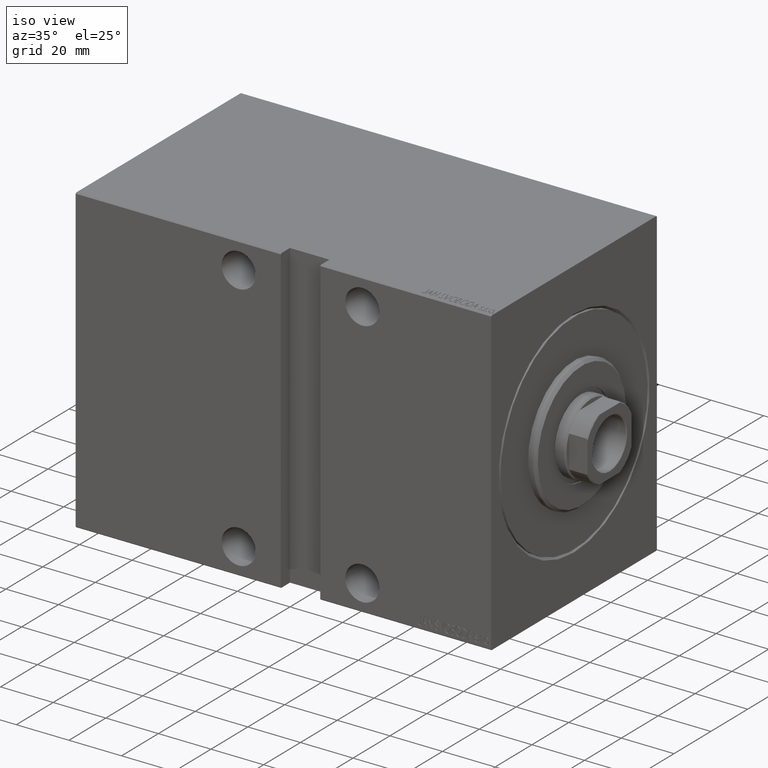
[diagram: clean part render]
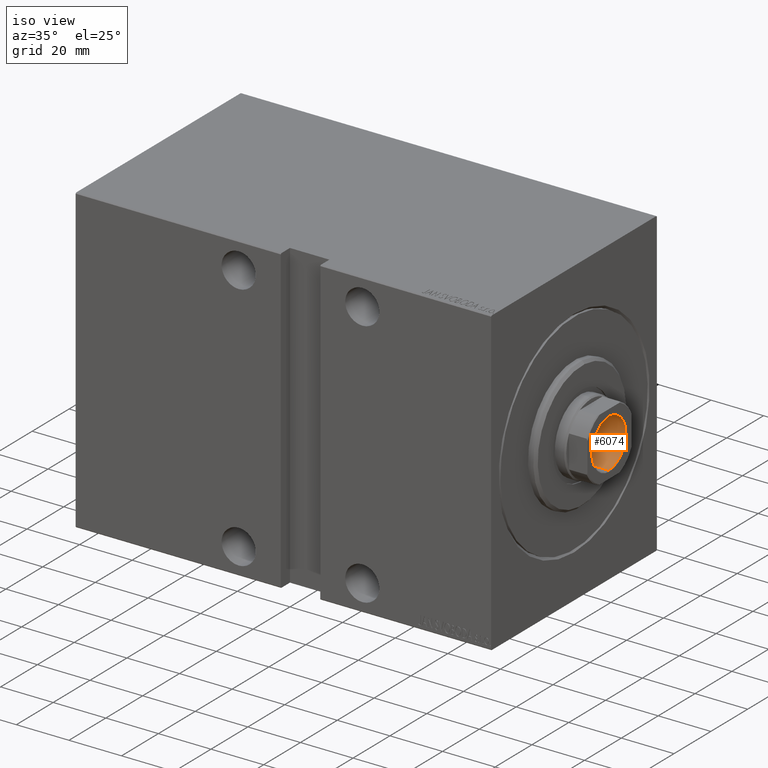
[diagram: same view with one face highlighted and labeled with its STEP entity id]
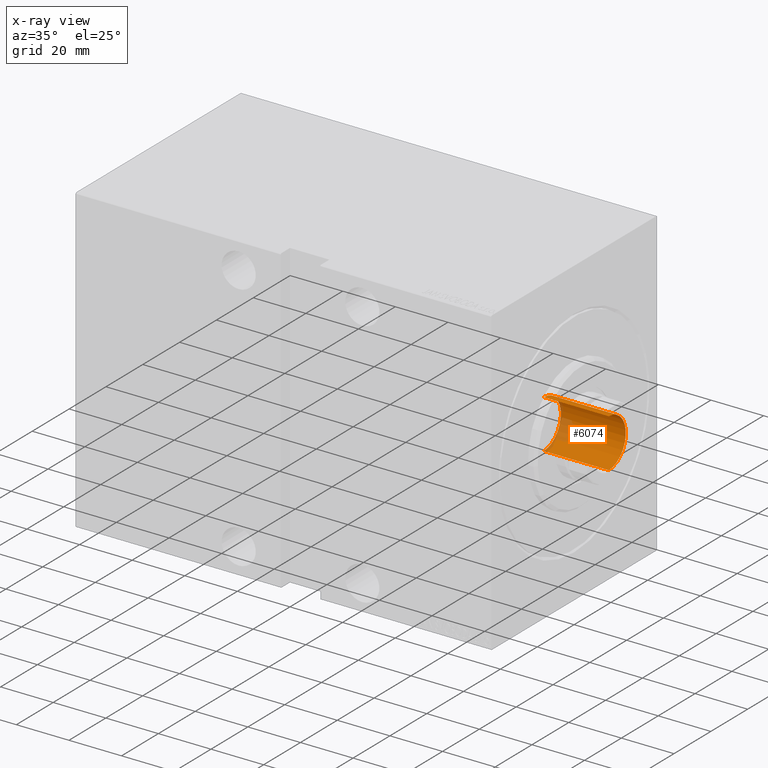
[diagram: x-ray of the same camera — body ghosted, the highlighted face saturated]
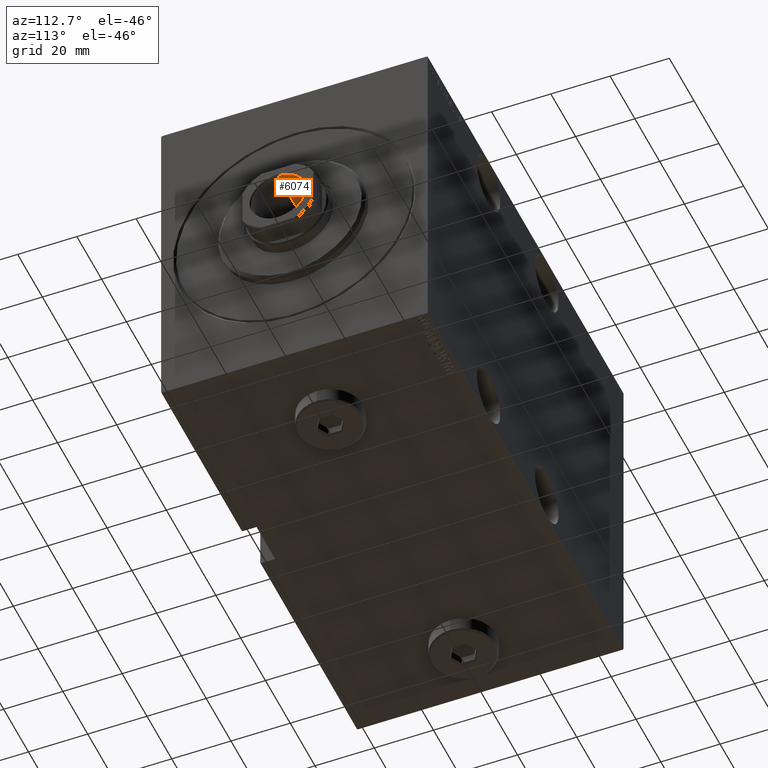
[diagram: same view with one face highlighted and labeled with its STEP entity id]
A machine part, iso view. The second image highlights one B-rep face of the part: STEP entity #6074.
The next image is the same camera in x-ray: the body ghosted, the highlighted face saturated — about 16% of this face is hidden behind the body in this view.
A second angle (auxiliary view) of the same face is appended — the face is thin or edge-on in the first view.
In plain terms, the highlighted cylindrical surface (edge-blend (fillet) strip) has radius 9.25 mm, axis along (1, 0, -0).
Its self-contained STEP definition (entity closure, byte-faithful):
#283 = VERTEX_POINT ( 'NONE', #16595 ) ;
#526 = EDGE_CURVE ( 'NONE', #283, #39434, #22694, .T. ) ;
#1280 = CARTESIAN_POINT ( 'NONE',  ( 0.000000000000000000, 0.000000000000000000, 153.6999999999999886 ) ) ;
#2166 = EDGE_CURVE ( 'NONE', #27146, #283, #25855, .T. ) ;
#2317 = ORIENTED_EDGE ( 'NONE', *, *, #36371, .F. ) ;
#6074 = ADVANCED_FACE ( 'NONE', ( #17157 ), #13601, .F. ) ;
#6147 = CARTESIAN_POINT ( 'NONE',  ( 9.249999999999994671, 0.000000000000000000, 154.0000000000000284 ) ) ;
#8129 = DIRECTION ( 'NONE',  ( 0.000000000000000000, 0.000000000000000000, 1.000000000000000000 ) ) ;
#9339 = CARTESIAN_POINT ( 'NONE',  ( -9.249999999999994671, 1.132798289211300909E-15, 129.0000000000000284 ) ) ;
#12022 = EDGE_CURVE ( 'NONE', #27146, #23755, #42700, .T. ) ;
#12133 = DIRECTION ( 'NONE',  ( -0.000000000000000000, -0.000000000000000000, 1.000000000000000000 ) ) ;
#13601 = CYLINDRICAL_SURFACE ( 'NONE', #20692, 9.249999999999994671 ) ;
#14284 = AXIS2_PLACEMENT_3D ( 'NONE', #1280, #8129, #41771 ) ;
#15181 = CARTESIAN_POINT ( 'NONE',  ( -9.249999999999994671, 1.132798289211300909E-15, 153.6999999999999886 ) ) ;
#16595 = CARTESIAN_POINT ( 'NONE',  ( 9.249999999999994671, 0.000000000000000000, 153.6999999999999886 ) ) ;
#17157 = FACE_OUTER_BOUND ( 'NONE', #27719, .T. ) ;
#18075 = DIRECTION ( 'NONE',  ( -0.000000000000000000, -0.000000000000000000, 1.000000000000000000 ) ) ;
#18296 = DIRECTION ( 'NONE',  ( 1.000000000000000000, 0.000000000000000000, 0.000000000000000000 ) ) ;
#19283 = LINE ( 'NONE', #43776, #22419 ) ;
#20541 = DIRECTION ( 'NONE',  ( -0.000000000000000000, -0.000000000000000000, 1.000000000000000000 ) ) ;
#20692 = AXIS2_PLACEMENT_3D ( 'NONE', #33973, #43486, #26685 ) ;
#22419 = VECTOR ( 'NONE', #20541, 1000.000000000000000 ) ;
#22694 = CIRCLE ( 'NONE', #14284, 9.249999999999994671 ) ;
#23755 = VERTEX_POINT ( 'NONE', #9339 ) ;
#25855 = LINE ( 'NONE', #6147, #39671 ) ;
#26685 = DIRECTION ( 'NONE',  ( 1.000000000000000000, 0.000000000000000000, 0.000000000000000000 ) ) ;
#27146 = VERTEX_POINT ( 'NONE', #31445 ) ;
#27719 = EDGE_LOOP ( 'NONE', ( #2317, #43476, #40855, #30099 ) ) ;
#28897 = CARTESIAN_POINT ( 'NONE',  ( 0.000000000000000000, 0.000000000000000000, 129.0000000000000284 ) ) ;
#30099 = ORIENTED_EDGE ( 'NONE', *, *, #526, .T. ) ;
#31445 = CARTESIAN_POINT ( 'NONE',  ( 9.249999999999994671, 0.000000000000000000, 129.0000000000000284 ) ) ;
#32822 = AXIS2_PLACEMENT_3D ( 'NONE', #28897, #18075, #18296 ) ;
#33973 = CARTESIAN_POINT ( 'NONE',  ( 0.000000000000000000, 0.000000000000000000, 154.0000000000000284 ) ) ;
#36371 = EDGE_CURVE ( 'NONE', #23755, #39434, #19283, .T. ) ;
#39434 = VERTEX_POINT ( 'NONE', #15181 ) ;
#39671 = VECTOR ( 'NONE', #12133, 1000.000000000000000 ) ;
#40855 = ORIENTED_EDGE ( 'NONE', *, *, #2166, .T. ) ;
#41771 = DIRECTION ( 'NONE',  ( 1.000000000000000000, 0.000000000000000000, 0.000000000000000000 ) ) ;
#42700 = CIRCLE ( 'NONE', #32822, 9.249999999999994671 ) ;
#43476 = ORIENTED_EDGE ( 'NONE', *, *, #12022, .F. ) ;
#43486 = DIRECTION ( 'NONE',  ( -0.000000000000000000, -0.000000000000000000, 1.000000000000000000 ) ) ;
#43776 = CARTESIAN_POINT ( 'NONE',  ( -9.249999999999994671, 1.132798289211300909E-15, 154.0000000000000284 ) ) ;